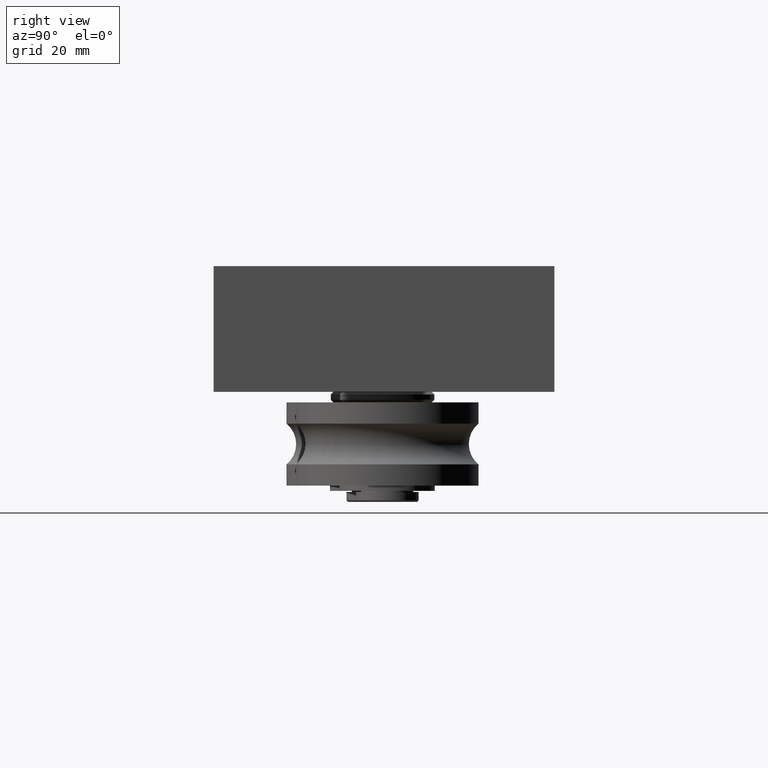
[diagram: clean part render]
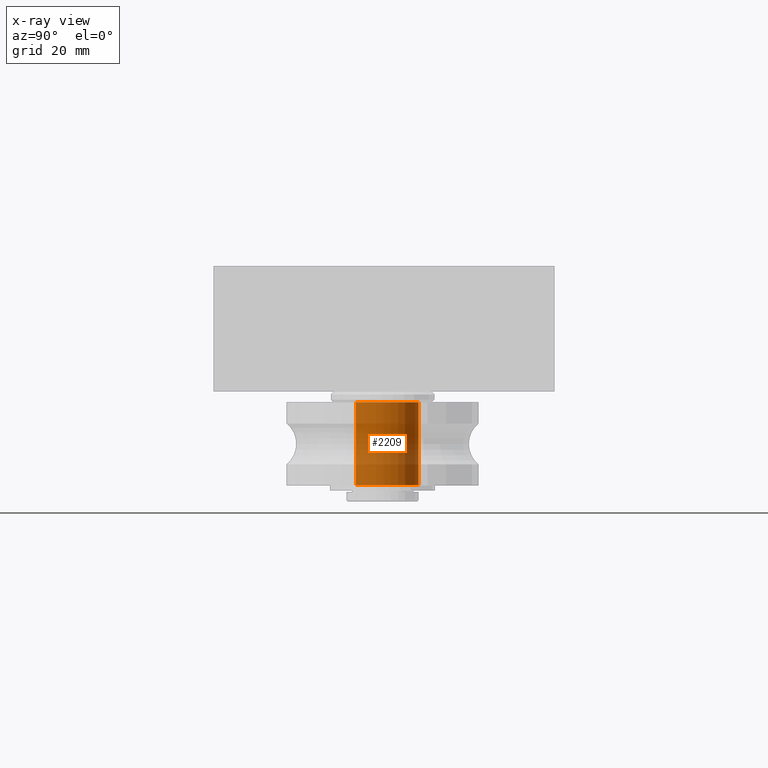
[diagram: x-ray — body ghosted, one internal face saturated and labeled with its STEP entity id]
A machine part, right view, then the same camera in x-ray: the body is ghosted and one INTERNAL B-rep face — a face not visible from any outside direction — is saturated and labeled: STEP entity #2209.
In plain terms, the highlighted cylindrical surface (bore or boss wall) has radius 6 mm, axis along (0, 0, -1).
Its self-contained STEP definition (entity closure, byte-faithful):
#269=CYLINDRICAL_SURFACE('',#2599,6.);
#348=FACE_OUTER_BOUND('',#513,.T.);
#513=EDGE_LOOP('',(#1724,#1725,#1726,#1727));
#685=LINE('',#3761,#825);
#825=VECTOR('',#3044,6.);
#947=CIRCLE('',#2589,6.);
#952=CIRCLE('',#2600,6.);
#1105=VERTEX_POINT('',#3740);
#1110=VERTEX_POINT('',#3759);
#1326=EDGE_CURVE('',#1105,#1105,#947,.T.);
#1334=EDGE_CURVE('',#1110,#1110,#952,.T.);
#1335=EDGE_CURVE('',#1110,#1105,#685,.T.);
#1724=ORIENTED_EDGE('',*,*,#1334,.F.);
#1725=ORIENTED_EDGE('',*,*,#1335,.T.);
#1726=ORIENTED_EDGE('',*,*,#1326,.T.);
#1727=ORIENTED_EDGE('',*,*,#1335,.F.);
#2209=ADVANCED_FACE('',(#348),#269,.T.);
#2589=AXIS2_PLACEMENT_3D('',#3741,#3017,#3018);
#2599=AXIS2_PLACEMENT_3D('',#3758,#3040,#3041);
#2600=AXIS2_PLACEMENT_3D('',#3760,#3042,#3043);
#3017=DIRECTION('center_axis',(1.,0.,0.));
#3018=DIRECTION('ref_axis',(0.,1.,0.));
#3040=DIRECTION('center_axis',(1.,0.,0.));
#3041=DIRECTION('ref_axis',(0.,1.,0.));
#3042=DIRECTION('center_axis',(1.,0.,0.));
#3043=DIRECTION('ref_axis',(0.,1.,0.));
#3044=DIRECTION('',(-1.,0.,0.));
#3740=CARTESIAN_POINT('',(2.,-6.,-7.34788079488412E-16));
#3741=CARTESIAN_POINT('Origin',(2.,0.,0.));
#3758=CARTESIAN_POINT('Origin',(9.9,0.,0.));
#3759=CARTESIAN_POINT('',(17.8,-6.,-7.34788079488412E-16));
#3760=CARTESIAN_POINT('Origin',(17.8,0.,0.));
#3761=CARTESIAN_POINT('',(9.9,-6.,-7.34788079488412E-16));